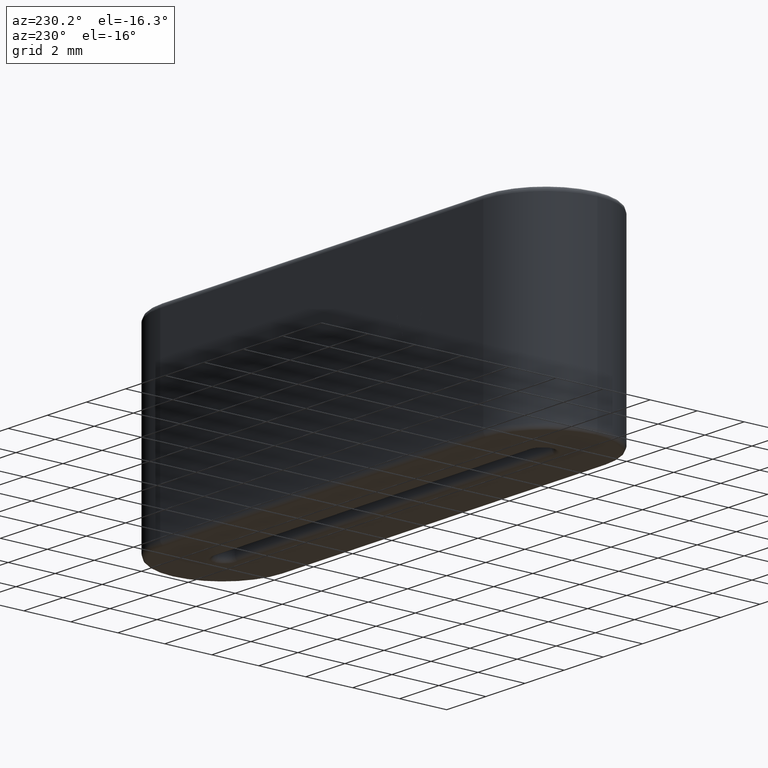
[diagram: clean part render]
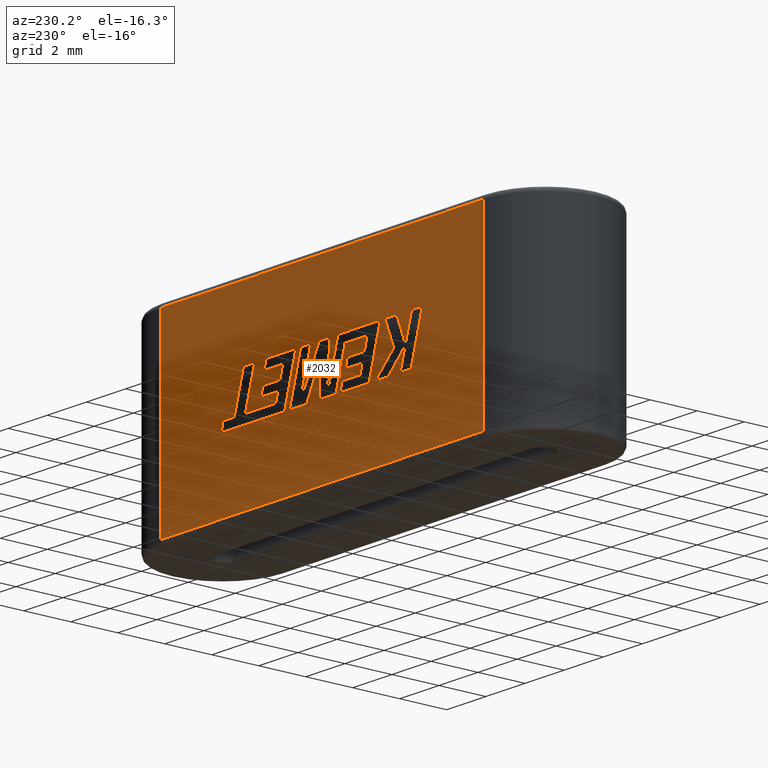
[diagram: same view with one face highlighted and labeled with its STEP entity id]
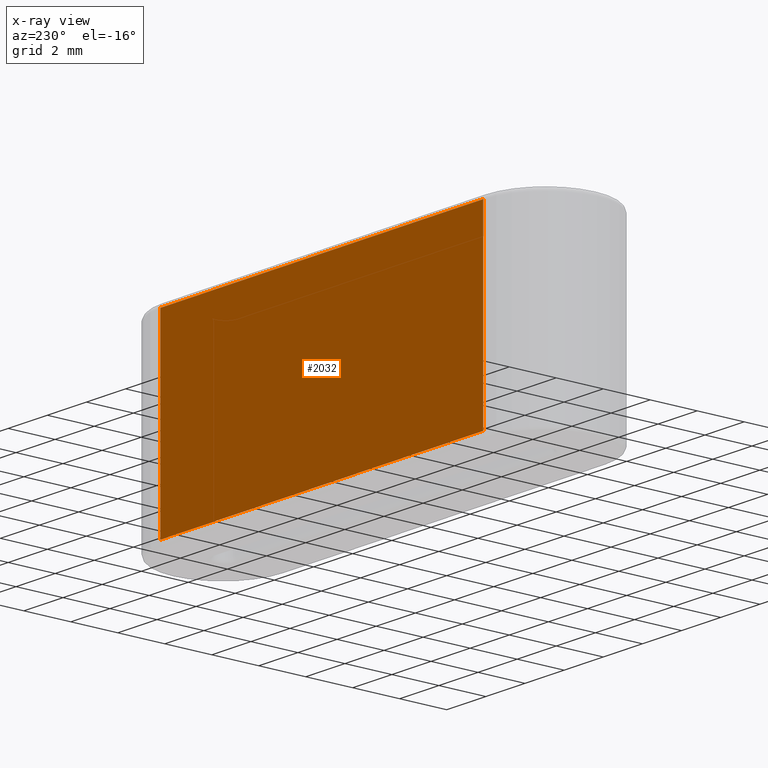
[diagram: x-ray of the same camera — body ghosted, the highlighted face saturated]
A machine part, auxiliary view. The second image highlights one B-rep face of the part: STEP entity #2032.
The next image is the same camera in x-ray: the body ghosted, the highlighted face saturated — about 0% of this face is hidden behind the body in this view.
In plain terms, the highlighted planar face has unit normal (0, -1, 0).
Its self-contained STEP definition (entity closure, byte-faithful):
#115 = LINE ( 'NONE', #1433, #1418 ) ;
#228 = DIRECTION ( 'NONE',  ( 0.000000000000000000, -1.000000000000000000, 0.000000000000000000 ) ) ;
#253 = ORIENTED_EDGE ( 'NONE', *, *, #1545, .T. ) ;
#278 = CARTESIAN_POINT ( 'NONE',  ( 8.249999999999996447, 2.649999999999999911, 8.099999999999999645 ) ) ;
#449 = VECTOR ( 'NONE', #2760, 1000.000000000000000 ) ;
#468 = VERTEX_POINT ( 'NONE', #778 ) ;
#541 = LINE ( 'NONE', #278, #2909 ) ;
#559 = EDGE_CURVE ( 'NONE', #2670, #3414, #541, .T. ) ;
#769 = ORIENTED_EDGE ( 'NONE', *, *, #3010, .T. ) ;
#778 = CARTESIAN_POINT ( 'NONE',  ( -8.250000000000000000, 2.649999999999999911, 0.2000000000000005107 ) ) ;
#834 = VERTEX_POINT ( 'NONE', #1756 ) ;
#879 = ORIENTED_EDGE ( 'NONE', *, *, #559, .T. ) ;
#952 = DIRECTION ( 'NONE',  ( -0.000000000000000000, -0.000000000000000000, 1.000000000000000000 ) ) ;
#1019 = LINE ( 'NONE', #2314, #3417 ) ;
#1270 = CARTESIAN_POINT ( 'NONE',  ( -10.90000000000000036, 2.649999999999999911, 8.300000000000000711 ) ) ;
#1343 = DIRECTION ( 'NONE',  ( 1.000000000000000000, -0.000000000000000000, -0.000000000000000000 ) ) ;
#1417 = DIRECTION ( 'NONE',  ( 0.000000000000000000, 0.000000000000000000, -1.000000000000000000 ) ) ;
#1418 = VECTOR ( 'NONE', #1417, 1000.000000000000000 ) ;
#1433 = CARTESIAN_POINT ( 'NONE',  ( 8.249999999999996447, 2.649999999999999911, 8.300000000000000711 ) ) ;
#1533 = PLANE ( 'NONE',  #2969 ) ;
#1545 = EDGE_CURVE ( 'NONE', #3414, #834, #115, .T. ) ;
#1650 = ORIENTED_EDGE ( 'NONE', *, *, #1670, .T. ) ;
#1670 = EDGE_CURVE ( 'NONE', #468, #2670, #1019, .T. ) ;
#1756 = CARTESIAN_POINT ( 'NONE',  ( 8.249999999999996447, 2.649999999999999911, 0.2000000000000005107 ) ) ;
#1771 = DIRECTION ( 'NONE',  ( 0.000000000000000000, -0.000000000000000000, -1.000000000000000000 ) ) ;
#2032 = ADVANCED_FACE ( 'NONE', ( #3368 ), #1533, .F. ) ;
#2197 = CARTESIAN_POINT ( 'NONE',  ( -10.90000000000000036, 2.649999999999999911, 0.2000000000000005107 ) ) ;
#2245 = CARTESIAN_POINT ( 'NONE',  ( -8.250000000000000000, 2.649999999999999911, 8.099999999999999645 ) ) ;
#2314 = CARTESIAN_POINT ( 'NONE',  ( -8.250000000000000000, 2.649999999999999911, 8.300000000000000711 ) ) ;
#2462 = LINE ( 'NONE', #2197, #449 ) ;
#2670 = VERTEX_POINT ( 'NONE', #2245 ) ;
#2760 = DIRECTION ( 'NONE',  ( -1.000000000000000000, 0.000000000000000000, 0.000000000000000000 ) ) ;
#2909 = VECTOR ( 'NONE', #1343, 1000.000000000000000 ) ;
#2969 = AXIS2_PLACEMENT_3D ( 'NONE', #1270, #228, #1771 ) ;
#3010 = EDGE_CURVE ( 'NONE', #834, #468, #2462, .T. ) ;
#3291 = CARTESIAN_POINT ( 'NONE',  ( 8.249999999999996447, 2.649999999999999911, 8.099999999999999645 ) ) ;
#3353 = EDGE_LOOP ( 'NONE', ( #253, #769, #1650, #879 ) ) ;
#3368 = FACE_OUTER_BOUND ( 'NONE', #3353, .T. ) ;
#3414 = VERTEX_POINT ( 'NONE', #3291 ) ;
#3417 = VECTOR ( 'NONE', #952, 1000.000000000000000 ) ;